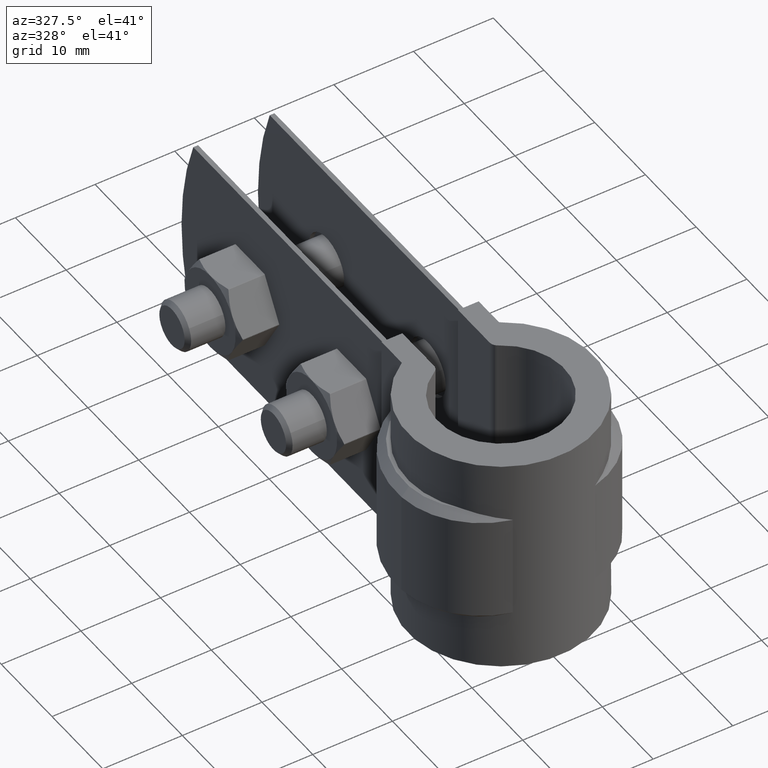
[diagram: clean part render]
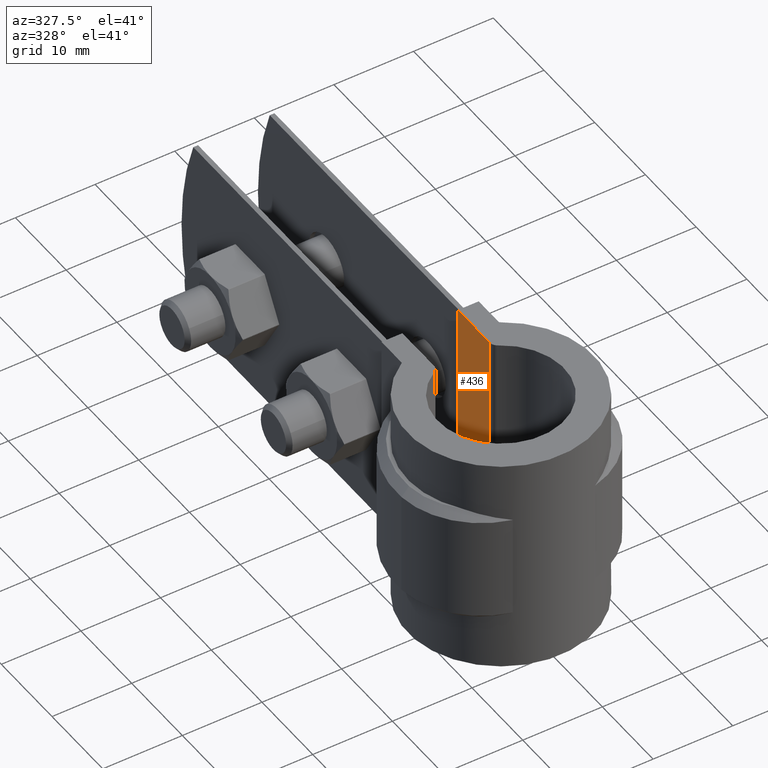
[diagram: same view with one face highlighted and labeled with its STEP entity id]
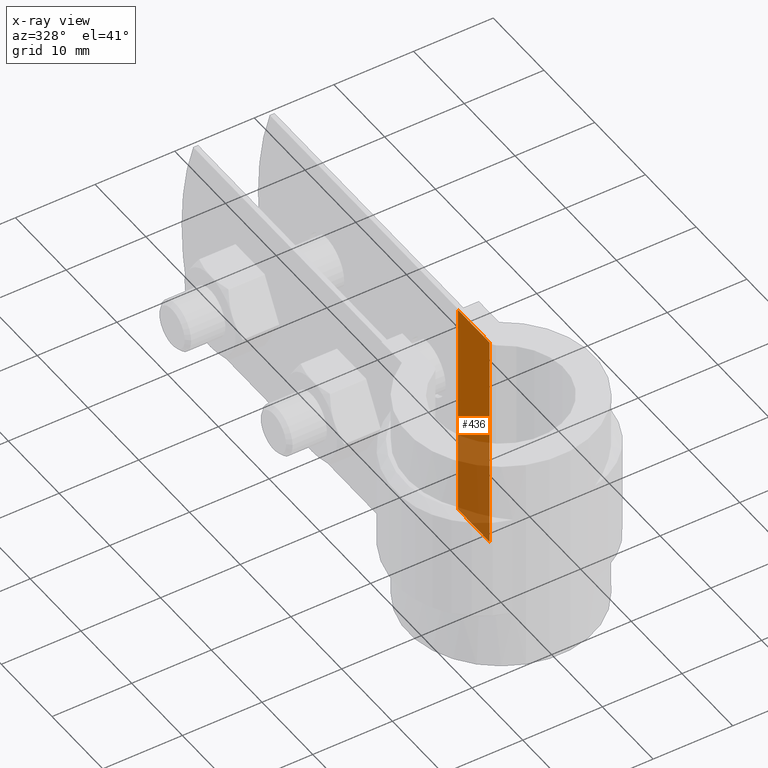
[diagram: x-ray of the same camera — body ghosted, the highlighted face saturated]
A machine part, auxiliary view. The second image highlights one B-rep face of the part: STEP entity #436.
The next image is the same camera in x-ray: the body ghosted, the highlighted face saturated — about 43% of this face is hidden behind the body in this view.
In plain terms, the highlighted planar face has unit normal (-1, 0, 0).
Its self-contained STEP definition (entity closure, byte-faithful):
#436 = ADVANCED_FACE( '', ( #762 ), #763, .T. );
#762 = FACE_OUTER_BOUND( '', #1748, .T. );
#763 = PLANE( '', #1749 );
#1748 = EDGE_LOOP( '', ( #3873, #3874, #3875, #3876 ) );
#1749 = AXIS2_PLACEMENT_3D( '', #3877, #3878, #3879 );
#3873 = ORIENTED_EDGE( '', *, *, #4719, .F. );
#3874 = ORIENTED_EDGE( '', *, *, #4729, .T. );
#3875 = ORIENTED_EDGE( '', *, *, #4685, .T. );
#3876 = ORIENTED_EDGE( '', *, *, #4728, .T. );
#3877 = CARTESIAN_POINT( '', ( 3.50000000000000, 15.1000000000000, -26.5000000000000 ) );
#3878 = DIRECTION( '', ( -1.00000000000000, 6.28837260041593E-017, 0.000000000000000 ) );
#3879 = DIRECTION( '', ( 6.28837260041593E-017, 1.00000000000000, 0.000000000000000 ) );
#4685 = EDGE_CURVE( '', #5397, #5406, #5408, .T. );
#4719 = EDGE_CURVE( '', #5457, #5459, #5460, .T. );
#4728 = EDGE_CURVE( '', #5406, #5459, #5472, .T. );
#4729 = EDGE_CURVE( '', #5457, #5397, #5473, .T. );
#5397 = VERTEX_POINT( '', #7670 );
#5406 = VERTEX_POINT( '', #7681 );
#5408 = LINE( '', #7683, #7684 );
#5457 = VERTEX_POINT( '', #7768 );
#5459 = VERTEX_POINT( '', #7771 );
#5460 = LINE( '', #7772, #7773 );
#5472 = LINE( '', #7790, #7791 );
#5473 = LINE( '', #7792, #7793 );
#7670 = CARTESIAN_POINT( '', ( 3.50000000000000, 13.9554761014037, -26.5000000000000 ) );
#7681 = CARTESIAN_POINT( '', ( 3.50000000000000, 7.72486893092692, -26.5000000000000 ) );
#7683 = CARTESIAN_POINT( '', ( 3.50000000000000, 15.1000000000000, -26.5000000000000 ) );
#7684 = VECTOR( '', #8563, 1000.00000000000 );
#7768 = CARTESIAN_POINT( '', ( 3.50000000000000, 13.9554761014037, 1.50000000000000 ) );
#7771 = CARTESIAN_POINT( '', ( 3.50000000000000, 7.72486893092692, 1.50000000000000 ) );
#7772 = CARTESIAN_POINT( '', ( 3.50000000000000, 15.1000000000000, 1.50000000000000 ) );
#7773 = VECTOR( '', #8635, 1000.00000000000 );
#7790 = CARTESIAN_POINT( '', ( 3.50000000000000, 7.72486893092692, -26.5000000000000 ) );
#7791 = VECTOR( '', #8650, 1000.00000000000 );
#7792 = CARTESIAN_POINT( '', ( 3.50000000000000, 13.9554761014037, -26.5000000000000 ) );
#7793 = VECTOR( '', #8651, 1000.00000000000 );
#8563 = DIRECTION( '', ( -6.28837260041593E-017, -1.00000000000000, 0.000000000000000 ) );
#8635 = DIRECTION( '', ( -6.28837260041593E-017, -1.00000000000000, 0.000000000000000 ) );
#8650 = DIRECTION( '', ( 0.000000000000000, 0.000000000000000, 1.00000000000000 ) );
#8651 = DIRECTION( '', ( 0.000000000000000, 0.000000000000000, -1.00000000000000 ) );